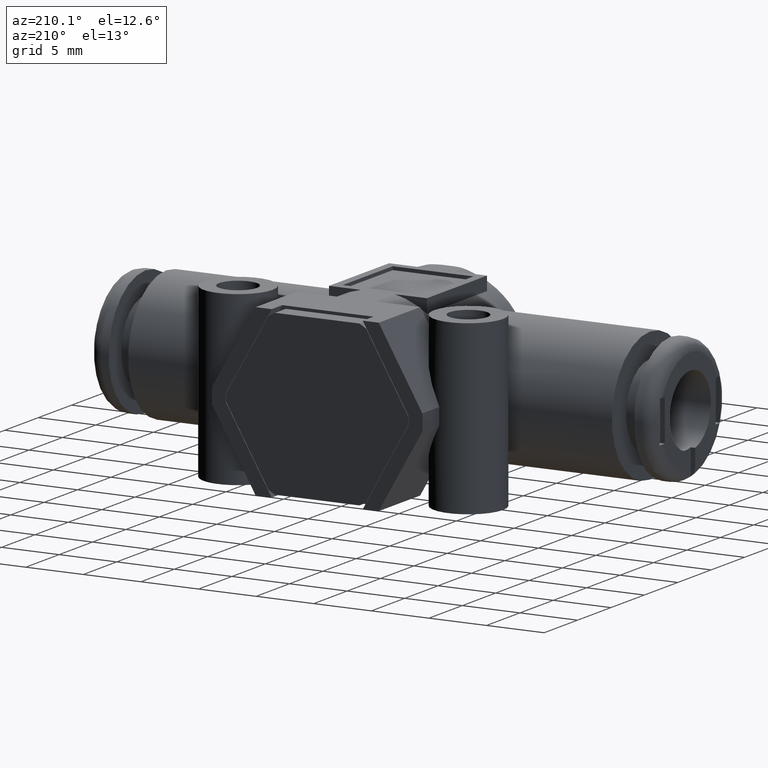
[diagram: clean part render]
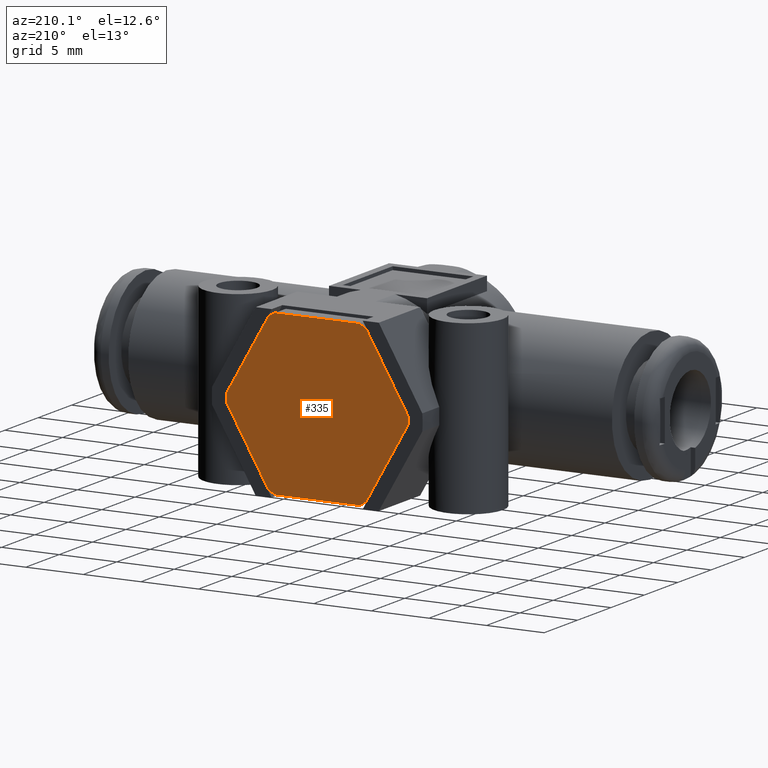
[diagram: same view with one face highlighted and labeled with its STEP entity id]
A machine part, auxiliary view. The second image highlights one B-rep face of the part: STEP entity #335.
In plain terms, the highlighted planar face has unit normal (0, 1, 0).
Its self-contained STEP definition (entity closure, byte-faithful):
#335 = ADVANCED_FACE( '', ( #705 ), #706, .T. );
#705 = FACE_OUTER_BOUND( '', #1131, .T. );
#706 = PLANE( '', #1132 );
#1131 = EDGE_LOOP( '', ( #1825, #1826, #1827, #1828, #1829, #1830, #1831, #1832, #1833, #1834, #1835, #1836 ) );
#1132 = AXIS2_PLACEMENT_3D( '', #1837, #1838, #1839 );
#1825 = ORIENTED_EDGE( '', *, *, #2535, .T. );
#1826 = ORIENTED_EDGE( '', *, *, #2542, .T. );
#1827 = ORIENTED_EDGE( '', *, *, #2543, .T. );
#1828 = ORIENTED_EDGE( '', *, *, #2544, .T. );
#1829 = ORIENTED_EDGE( '', *, *, #2341, .T. );
#1830 = ORIENTED_EDGE( '', *, *, #2545, .T. );
#1831 = ORIENTED_EDGE( '', *, *, #2546, .T. );
#1832 = ORIENTED_EDGE( '', *, *, #2384, .T. );
#1833 = ORIENTED_EDGE( '', *, *, #2377, .T. );
#1834 = ORIENTED_EDGE( '', *, *, #2547, .T. );
#1835 = ORIENTED_EDGE( '', *, *, #2512, .T. );
#1836 = ORIENTED_EDGE( '', *, *, #2548, .T. );
#1837 = CARTESIAN_POINT( '', ( 1.60000000000000, 0.000000000000000, 0.000000000000000 ) );
#1838 = DIRECTION( '', ( 1.00000000000000, 0.000000000000000, 0.000000000000000 ) );
#1839 = DIRECTION( '', ( 0.000000000000000, 0.000000000000000, -1.00000000000000 ) );
#2341 = EDGE_CURVE( '', #2744, #2745, #2746, .T. );
#2377 = EDGE_CURVE( '', #2806, #2807, #2808, .T. );
#2384 = EDGE_CURVE( '', #2817, #2806, #2818, .T. );
#2512 = EDGE_CURVE( '', #3015, #3016, #3017, .T. );
#2535 = EDGE_CURVE( '', #3051, #3052, #3053, .T. );
#2542 = EDGE_CURVE( '', #3052, #3062, #3063, .T. );
#2543 = EDGE_CURVE( '', #3062, #3064, #3065, .T. );
#2544 = EDGE_CURVE( '', #3064, #2744, #3066, .T. );
#2545 = EDGE_CURVE( '', #2745, #3067, #3068, .T. );
#2546 = EDGE_CURVE( '', #3067, #2817, #3069, .T. );
#2547 = EDGE_CURVE( '', #2807, #3015, #3070, .T. );
#2548 = EDGE_CURVE( '', #3016, #3051, #3071, .T. );
#2744 = VERTEX_POINT( '', #3375 );
#2745 = VERTEX_POINT( '', #3376 );
#2746 = LINE( '', #3377, #3378 );
#2806 = VERTEX_POINT( '', #3471 );
#2807 = VERTEX_POINT( '', #3472 );
#2808 = LINE( '', #3473, #3474 );
#2817 = VERTEX_POINT( '', #3485 );
#2818 = CIRCLE( '', #3486, 7.90000000000000 );
#3015 = VERTEX_POINT( '', #3923 );
#3016 = VERTEX_POINT( '', #3924 );
#3017 = LINE( '', #3925, #3926 );
#3051 = VERTEX_POINT( '', #4078 );
#3052 = VERTEX_POINT( '', #4079 );
#3053 = LINE( '', #4080, #4081 );
#3062 = VERTEX_POINT( '', #4092 );
#3063 = CIRCLE( '', #4093, 7.90000000000000 );
#3064 = VERTEX_POINT( '', #4094 );
#3065 = LINE( '', #4095, #4096 );
#3066 = CIRCLE( '', #4097, 7.90000000000000 );
#3067 = VERTEX_POINT( '', #4098 );
#3068 = CIRCLE( '', #4099, 7.90000000000000 );
#3069 = LINE( '', #4100, #4101 );
#3070 = CIRCLE( '', #4102, 7.90000000000000 );
#3071 = CIRCLE( '', #4103, 7.90000000000000 );
#3375 = CARTESIAN_POINT( '', ( 1.60000000000000, -7.89316116885113, -0.328643823220103 ) );
#3376 = CARTESIAN_POINT( '', ( 1.60000000000000, -4.23119448413102, -6.67135617677990 ) );
#3377 = CARTESIAN_POINT( '', ( 1.60000000000000, -8.08290376865476, 0.000000000000000 ) );
#3378 = VECTOR( '', #4494, 1000.00000000000 );
#3471 = CARTESIAN_POINT( '', ( 1.60000000000000, 4.23119448413102, -6.67135617677990 ) );
#3472 = CARTESIAN_POINT( '', ( 1.60000000000000, 7.89316116885113, -0.328643823220103 ) );
#3473 = CARTESIAN_POINT( '', ( 1.60000000000000, 4.04145188432738, -7.00000000000000 ) );
#3474 = VECTOR( '', #4532, 1000.00000000000 );
#3485 = CARTESIAN_POINT( '', ( 1.60000000000000, 3.66196668472011, -7.00000000000000 ) );
#3486 = AXIS2_PLACEMENT_3D( '', #4541, #4542, #4543 );
#3923 = CARTESIAN_POINT( '', ( 1.60000000000000, 7.89316116885113, 0.328643823220103 ) );
#3924 = CARTESIAN_POINT( '', ( 1.60000000000000, 4.23119448413102, 6.67135617677990 ) );
#3925 = CARTESIAN_POINT( '', ( 1.60000000000000, 8.08290376865476, 0.000000000000000 ) );
#3926 = VECTOR( '', #4702, 1000.00000000000 );
#4078 = CARTESIAN_POINT( '', ( 1.60000000000000, 3.66196668472011, 7.00000000000000 ) );
#4079 = CARTESIAN_POINT( '', ( 1.60000000000000, -3.66196668472011, 7.00000000000000 ) );
#4080 = CARTESIAN_POINT( '', ( 1.60000000000000, 4.04145188432738, 7.00000000000000 ) );
#4081 = VECTOR( '', #4728, 1000.00000000000 );
#4092 = CARTESIAN_POINT( '', ( 1.60000000000000, -4.23119448413102, 6.67135617677990 ) );
#4093 = AXIS2_PLACEMENT_3D( '', #4737, #4738, #4739 );
#4094 = CARTESIAN_POINT( '', ( 1.60000000000000, -7.89316116885113, 0.328643823220103 ) );
#4095 = CARTESIAN_POINT( '', ( 1.60000000000000, -4.04145188432738, 7.00000000000000 ) );
#4096 = VECTOR( '', #4740, 1000.00000000000 );
#4097 = AXIS2_PLACEMENT_3D( '', #4741, #4742, #4743 );
#4098 = CARTESIAN_POINT( '', ( 1.60000000000000, -3.66196668472011, -7.00000000000000 ) );
#4099 = AXIS2_PLACEMENT_3D( '', #4744, #4745, #4746 );
#4100 = CARTESIAN_POINT( '', ( 1.60000000000000, -4.04145188432738, -7.00000000000000 ) );
#4101 = VECTOR( '', #4747, 1000.00000000000 );
#4102 = AXIS2_PLACEMENT_3D( '', #4748, #4749, #4750 );
#4103 = AXIS2_PLACEMENT_3D( '', #4751, #4752, #4753 );
#4494 = DIRECTION( '', ( 0.000000000000000, 0.500000000000000, -0.866025403784439 ) );
#4532 = DIRECTION( '', ( 0.000000000000000, 0.500000000000000, 0.866025403784439 ) );
#4541 = CARTESIAN_POINT( '', ( 1.60000000000000, 0.000000000000000, 0.000000000000000 ) );
#4542 = DIRECTION( '', ( 1.00000000000000, 0.000000000000000, 0.000000000000000 ) );
#4543 = DIRECTION( '', ( 0.000000000000000, 0.000000000000000, -1.00000000000000 ) );
#4702 = DIRECTION( '', ( 0.000000000000000, -0.500000000000000, 0.866025403784439 ) );
#4728 = DIRECTION( '', ( 0.000000000000000, -1.00000000000000, 0.000000000000000 ) );
#4737 = CARTESIAN_POINT( '', ( 1.60000000000000, 0.000000000000000, 0.000000000000000 ) );
#4738 = DIRECTION( '', ( 1.00000000000000, 0.000000000000000, 0.000000000000000 ) );
#4739 = DIRECTION( '', ( 0.000000000000000, 0.000000000000000, -1.00000000000000 ) );
#4740 = DIRECTION( '', ( 0.000000000000000, -0.500000000000000, -0.866025403784439 ) );
#4741 = CARTESIAN_POINT( '', ( 1.60000000000000, 0.000000000000000, 0.000000000000000 ) );
#4742 = DIRECTION( '', ( 1.00000000000000, 0.000000000000000, 0.000000000000000 ) );
#4743 = DIRECTION( '', ( 0.000000000000000, 0.000000000000000, -1.00000000000000 ) );
#4744 = CARTESIAN_POINT( '', ( 1.60000000000000, 0.000000000000000, 0.000000000000000 ) );
#4745 = DIRECTION( '', ( 1.00000000000000, 0.000000000000000, 0.000000000000000 ) );
#4746 = DIRECTION( '', ( 0.000000000000000, 0.000000000000000, -1.00000000000000 ) );
#4747 = DIRECTION( '', ( 0.000000000000000, 1.00000000000000, 0.000000000000000 ) );
#4748 = CARTESIAN_POINT( '', ( 1.60000000000000, 0.000000000000000, 0.000000000000000 ) );
#4749 = DIRECTION( '', ( 1.00000000000000, 0.000000000000000, 0.000000000000000 ) );
#4750 = DIRECTION( '', ( 0.000000000000000, 0.000000000000000, -1.00000000000000 ) );
#4751 = CARTESIAN_POINT( '', ( 1.60000000000000, 0.000000000000000, 0.000000000000000 ) );
#4752 = DIRECTION( '', ( 1.00000000000000, 0.000000000000000, 0.000000000000000 ) );
#4753 = DIRECTION( '', ( 0.000000000000000, 0.000000000000000, -1.00000000000000 ) );